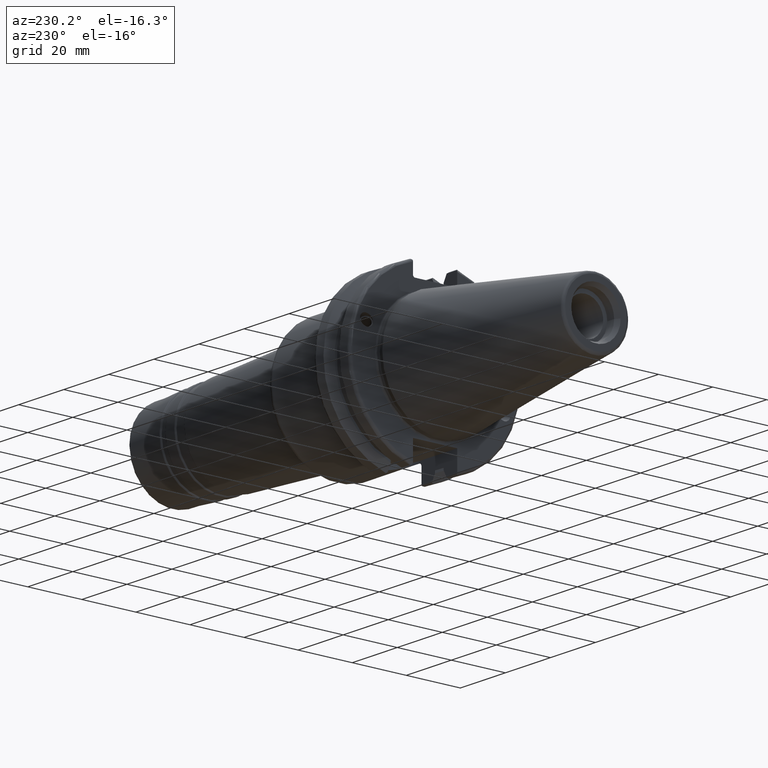
[diagram: clean part render]
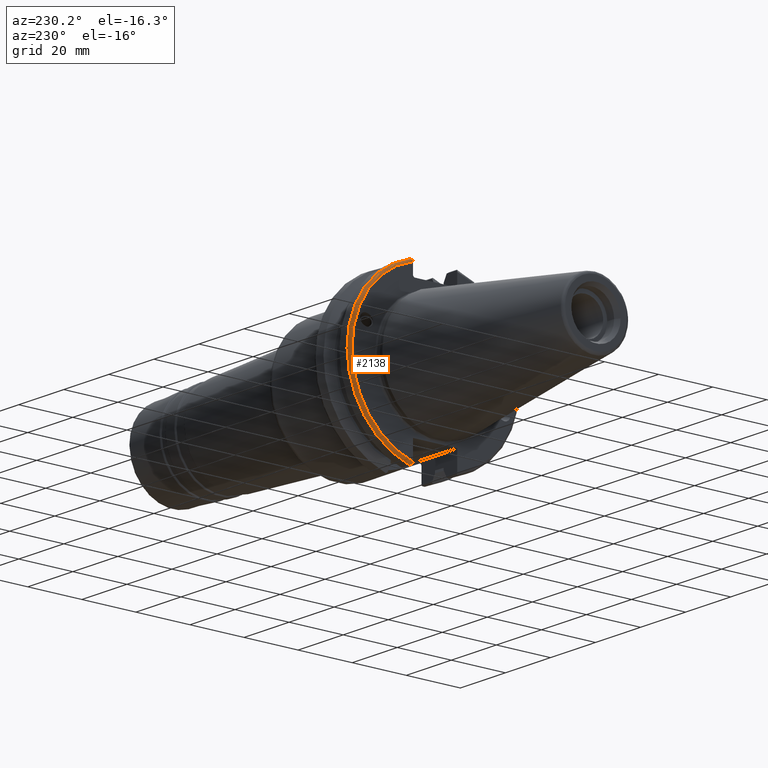
[diagram: same view with one face highlighted and labeled with its STEP entity id]
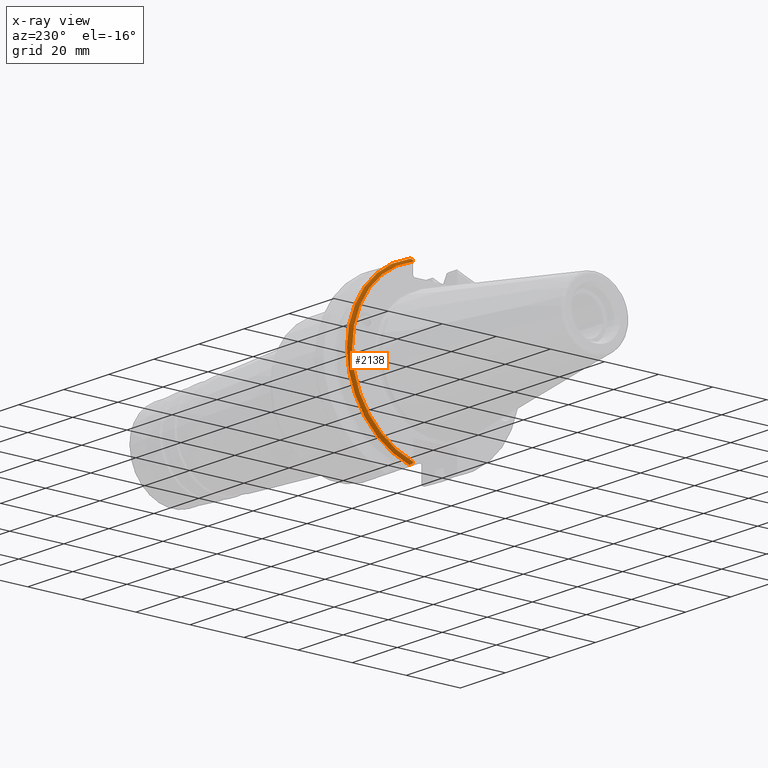
[diagram: x-ray of the same camera — body ghosted, the highlighted face saturated]
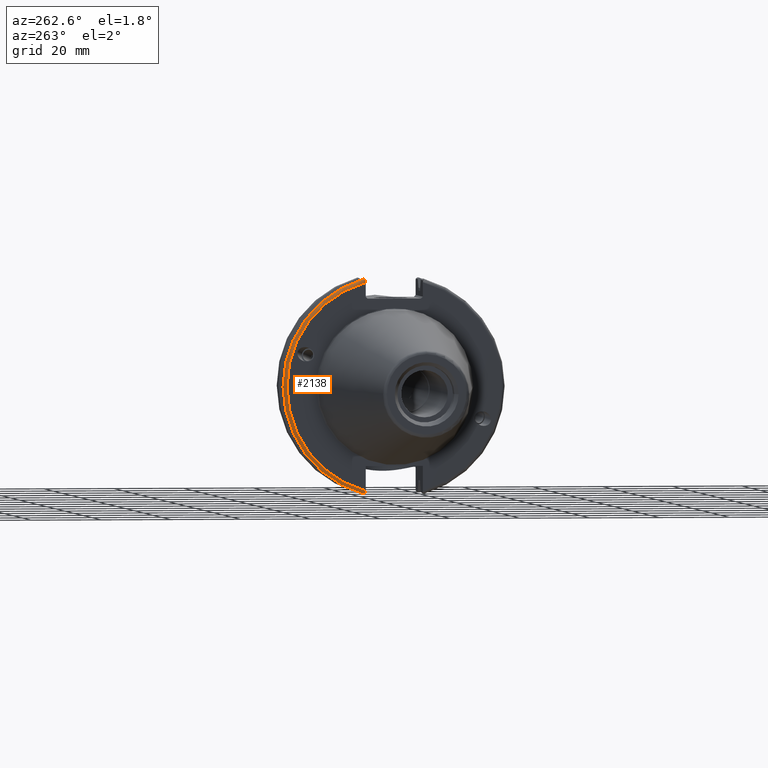
[diagram: same view with one face highlighted and labeled with its STEP entity id]
A machine part, auxiliary view. The second image highlights one B-rep face of the part: STEP entity #2138.
The next image is the same camera in x-ray: the body ghosted, the highlighted face saturated — about 0% of this face is hidden behind the body in this view.
A second angle (auxiliary view) of the same face is appended — the face is thin or edge-on in the first view.
In plain terms, the highlighted toroidal blend (fillet) surface has major radius 30.75 mm and minor (blend) radius 1 mm.
Its self-contained STEP definition (entity closure, byte-faithful):
#101=TOROIDAL_SURFACE('',#2429,30.75,1.);
#140=B_SPLINE_CURVE_WITH_KNOTS('',3,(#3973,#3974,#3975,#3976,#3977,#3978),
 .UNSPECIFIED.,.F.,.F.,(4,2,4),(0.0977210450333169,0.111963554372601,0.150804064902975),
 .UNSPECIFIED.);
#149=B_SPLINE_CURVE_WITH_KNOTS('',3,(#4090,#4091,#4092,#4093,#4094,#4095,
#4096,#4097),.UNSPECIFIED.,.F.,.F.,(4,2,2,4),(-0.104180282751876,-0.072978474246144,
-0.0343524753874979,0.),.UNSPECIFIED.);
#150=B_SPLINE_CURVE_WITH_KNOTS('',3,(#4100,#4101,#4102,#4103,#4104,#4105,
#4106,#4107),.UNSPECIFIED.,.F.,.F.,(4,2,2,4),(0.,0.0343524753874975,0.0729784742461445,
0.104180282751877),.UNSPECIFIED.);
#151=B_SPLINE_CURVE_WITH_KNOTS('',3,(#4108,#4109,#4110,#4111,#4112,#4113),
 .UNSPECIFIED.,.F.,.F.,(4,2,4),(0.452741154494498,0.491581665024872,0.505824174364157),
 .UNSPECIFIED.);
#257=FACE_OUTER_BOUND('',#375,.T.);
#375=EDGE_LOOP('',(#1881,#1882,#1883,#1884,#1885,#1886));
#747=CIRCLE('',#2411,30.75);
#754=CIRCLE('',#2430,31.75);
#968=VERTEX_POINT('',#3915);
#969=VERTEX_POINT('',#3917);
#979=VERTEX_POINT('',#3972);
#995=VERTEX_POINT('',#4088);
#996=VERTEX_POINT('',#4089);
#997=VERTEX_POINT('',#4098);
#1267=EDGE_CURVE('',#969,#968,#747,.T.);
#1282=EDGE_CURVE('',#979,#969,#140,.T.);
#1311=EDGE_CURVE('',#995,#996,#149,.T.);
#1312=EDGE_CURVE('',#996,#997,#754,.T.);
#1313=EDGE_CURVE('',#997,#979,#150,.T.);
#1314=EDGE_CURVE('',#968,#995,#151,.T.);
#1881=ORIENTED_EDGE('',*,*,#1311,.T.);
#1882=ORIENTED_EDGE('',*,*,#1312,.T.);
#1883=ORIENTED_EDGE('',*,*,#1313,.T.);
#1884=ORIENTED_EDGE('',*,*,#1282,.T.);
#1885=ORIENTED_EDGE('',*,*,#1267,.T.);
#1886=ORIENTED_EDGE('',*,*,#1314,.T.);
#2138=ADVANCED_FACE('',(#257),#101,.T.);
#2411=AXIS2_PLACEMENT_3D('',#3918,#2994,#2995);
#2429=AXIS2_PLACEMENT_3D('',#4087,#3048,#3049);
#2430=AXIS2_PLACEMENT_3D('',#4099,#3050,#3051);
#2994=DIRECTION('center_axis',(1.,0.,0.));
#2995=DIRECTION('ref_axis',(0.,1.,1.60812264967664E-16));
#3048=DIRECTION('center_axis',(1.,0.,0.));
#3049=DIRECTION('ref_axis',(0.,0.,-1.));
#3050=DIRECTION('center_axis',(-1.,0.,0.));
#3051=DIRECTION('ref_axis',(0.,1.,1.60812264967664E-16));
#3915=CARTESIAN_POINT('',(3.175,8.19,29.6392712461019));
#3917=CARTESIAN_POINT('',(3.175,8.18999999999999,-29.6392712461019));
#3918=CARTESIAN_POINT('Origin',(3.175,0.,0.));
#3972=CARTESIAN_POINT('',(3.31912772509028,8.19,-30.1755016258903));
#3973=CARTESIAN_POINT('Ctrl Pts',(3.31912772509028,8.19,-30.1755016258903));
#3974=CARTESIAN_POINT('Ctrl Pts',(3.29318362718666,8.19,-30.131014531546));
#3975=CARTESIAN_POINT('Ctrl Pts',(3.27103565282437,8.19,-30.0852355256475));
#3976=CARTESIAN_POINT('Ctrl Pts',(3.20451443291695,8.19,-29.9212724384851));
#3977=CARTESIAN_POINT('Ctrl Pts',(3.175,8.19,-29.7687396145364));
#3978=CARTESIAN_POINT('Ctrl Pts',(3.175,8.19,-29.6392712461019));
#4087=CARTESIAN_POINT('Origin',(4.175,0.,0.));
#4088=CARTESIAN_POINT('',(3.31912772509028,8.19,30.1755016258903));
#4089=CARTESIAN_POINT('',(4.175,8.67204822802685,30.5427254764662));
#4090=CARTESIAN_POINT('Ctrl Pts',(3.31912772509028,8.19,30.1755016258903));
#4091=CARTESIAN_POINT('Ctrl Pts',(3.36755369570114,8.2703682833078,30.2367261024977));
#4092=CARTESIAN_POINT('Ctrl Pts',(3.43232973376814,8.34909446036477,30.2966996242308));
#4093=CARTESIAN_POINT('Ctrl Pts',(3.58532758094931,8.48862804755884,30.4029961692546));
#4094=CARTESIAN_POINT('Ctrl Pts',(3.70655857052286,8.56482138642532,30.4610401774263));
#4095=CARTESIAN_POINT('Ctrl Pts',(3.92668295662254,8.6471881193939,30.5237870709558));
#4096=CARTESIAN_POINT('Ctrl Pts',(4.06049174870834,8.67204822802686,30.5427254764662));
#4097=CARTESIAN_POINT('Ctrl Pts',(4.175,8.67204822802686,30.5427254764662));
#4098=CARTESIAN_POINT('',(4.175,8.67204822802685,-30.5427254764662));
#4099=CARTESIAN_POINT('Origin',(4.175,0.,0.));
#4100=CARTESIAN_POINT('Ctrl Pts',(4.175,8.67204822802685,-30.5427254764662));
#4101=CARTESIAN_POINT('Ctrl Pts',(4.06049174870834,8.67204822802685,-30.5427254764662));
#4102=CARTESIAN_POINT('Ctrl Pts',(3.92668295662254,8.6471881193939,-30.5237870709558));
#4103=CARTESIAN_POINT('Ctrl Pts',(3.70655857052286,8.56482138642533,-30.4610401774263));
#4104=CARTESIAN_POINT('Ctrl Pts',(3.58532758094931,8.48862804755884,-30.4029961692546));
#4105=CARTESIAN_POINT('Ctrl Pts',(3.43232973376814,8.34909446036477,-30.2966996242308));
#4106=CARTESIAN_POINT('Ctrl Pts',(3.36755369570113,8.2703682833078,-30.2367261024977));
#4107=CARTESIAN_POINT('Ctrl Pts',(3.31912772509028,8.18999999999999,-30.1755016258903));
#4108=CARTESIAN_POINT('Ctrl Pts',(3.175,8.19,29.6392712461018));
#4109=CARTESIAN_POINT('Ctrl Pts',(3.175,8.19,29.7687396145364));
#4110=CARTESIAN_POINT('Ctrl Pts',(3.20451443291695,8.19,29.9212724384851));
#4111=CARTESIAN_POINT('Ctrl Pts',(3.27103565282437,8.19,30.0852355256475));
#4112=CARTESIAN_POINT('Ctrl Pts',(3.29318362718666,8.19,30.131014531546));
#4113=CARTESIAN_POINT('Ctrl Pts',(3.31912772509028,8.19,30.1755016258903));